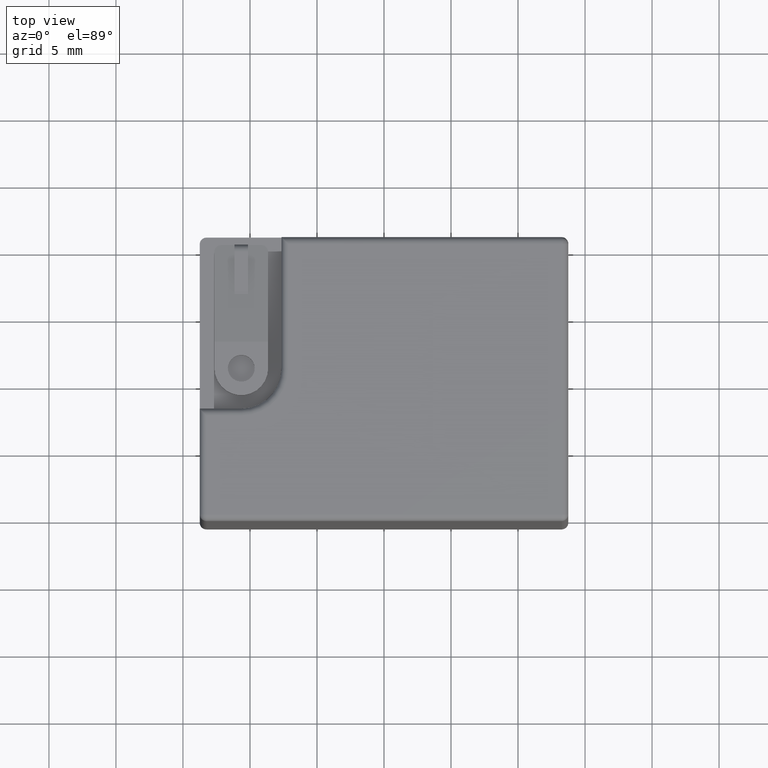
[diagram: clean part render]
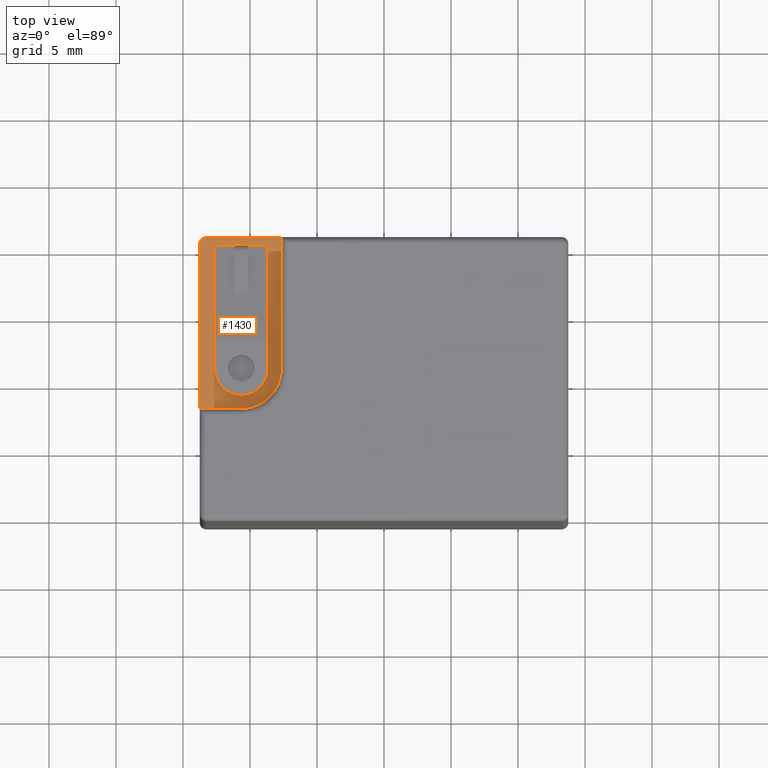
[diagram: same view with one face highlighted and labeled with its STEP entity id]
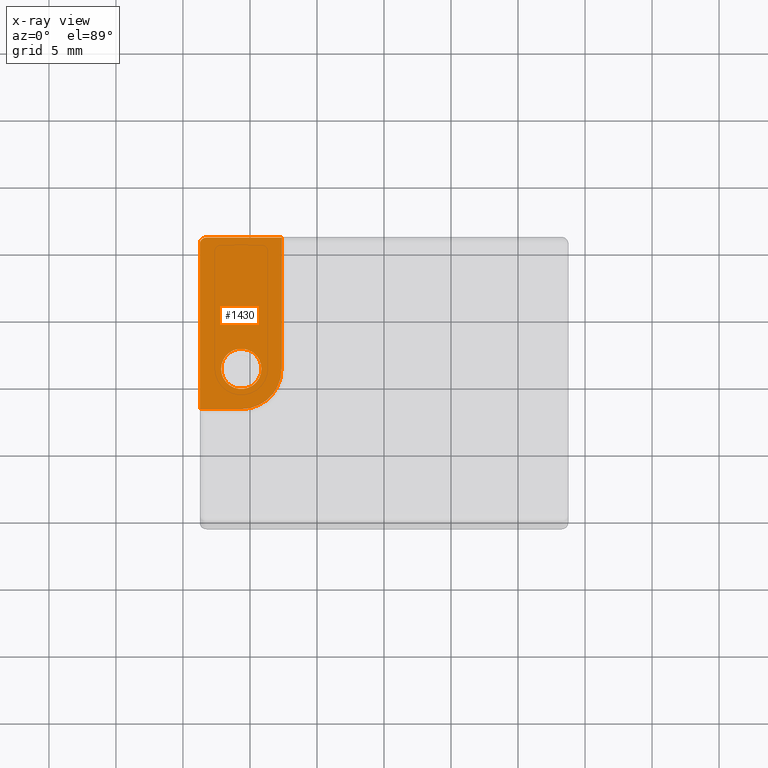
[diagram: x-ray of the same camera — body ghosted, the highlighted face saturated]
A machine part, top view. The second image highlights one B-rep face of the part: STEP entity #1430.
The next image is the same camera in x-ray: the body ghosted, the highlighted face saturated — about 0% of this face is hidden behind the body in this view.
In plain terms, the highlighted planar face has unit normal (0, 0, -1).
Its self-contained STEP definition (entity closure, byte-faithful):
#1361 = VERTEX_POINT ( 'NONE', #4551 ) ;
#1367 = VERTEX_POINT ( 'NONE', #4539 ) ;
#1369 = EDGE_CURVE ( 'NONE', #1367, #1361, #4538, .T. ) ;
#1400 = EDGE_CURVE ( 'NONE', #1416, #1418, #4613, .T. ) ;
#1401 = ORIENTED_EDGE ( 'NONE', *, *, #1402, .T. ) ;
#1402 = EDGE_CURVE ( 'NONE', #1418, #1406, #4608, .T. ) ;
#1403 = EDGE_LOOP ( 'NONE', ( #1419, #1421 ) ) ;
#1404 = ORIENTED_EDGE ( 'NONE', *, *, #1405, .T. ) ;
#1405 = EDGE_CURVE ( 'NONE', #1406, #1407, #4604, .T. ) ;
#1406 = VERTEX_POINT ( 'NONE', #4600 ) ;
#1407 = VERTEX_POINT ( 'NONE', #4599 ) ;
#1408 = ORIENTED_EDGE ( 'NONE', *, *, #1409, .T. ) ;
#1409 = EDGE_CURVE ( 'NONE', #1407, #1410, #4598, .T. ) ;
#1410 = VERTEX_POINT ( 'NONE', #4663 ) ;
#1411 = ORIENTED_EDGE ( 'NONE', *, *, #1412, .T. ) ;
#1412 = EDGE_CURVE ( 'NONE', #1410, #1413, #4662, .T. ) ;
#1413 = VERTEX_POINT ( 'NONE', #4658 ) ;
#1414 = ORIENTED_EDGE ( 'NONE', *, *, #1415, .T. ) ;
#1415 = EDGE_CURVE ( 'NONE', #1413, #1416, #4657, .T. ) ;
#1416 = VERTEX_POINT ( 'NONE', #4653 ) ;
#1417 = ORIENTED_EDGE ( 'NONE', *, *, #1400, .T. ) ;
#1418 = VERTEX_POINT ( 'NONE', #4652 ) ;
#1419 = ORIENTED_EDGE ( 'NONE', *, *, #1420, .F. ) ;
#1420 = EDGE_CURVE ( 'NONE', #1361, #1367, #4650, .T. ) ;
#1421 = ORIENTED_EDGE ( 'NONE', *, *, #1369, .F. ) ;
#1430 = ADVANCED_FACE ( 'NONE', ( #4670, #4669 ), #4668, .F. ) ;
#1431 = EDGE_LOOP ( 'NONE', ( #1404, #1408, #1411, #1414, #1417, #1401 ) ) ;
#4534 = DIRECTION ( 'NONE',  ( -1.000000000000000000, 0.0000000000000000000, 0.0000000000000000000 ) ) ;
#4535 = DIRECTION ( 'NONE',  ( 0.0000000000000000000, 0.0000000000000000000, 1.000000000000000000 ) ) ;
#4536 = CARTESIAN_POINT ( 'NONE',  ( -10.65000000000000200, 0.7999999999999977100, 33.09999999999999400 ) ) ;
#4537 = AXIS2_PLACEMENT_3D ( 'NONE', #4536, #4535, #4534 ) ;
#4538 = CIRCLE ( 'NONE', #4537, 1.499999999999999600 ) ;
#4539 = CARTESIAN_POINT ( 'NONE',  ( -9.150000000000002100, 0.7999999999999979300, 33.09999999999999400 ) ) ;
#4551 = CARTESIAN_POINT ( 'NONE',  ( -12.15000000000000000, 0.7999999999999977100, 33.09999999999999400 ) ) ;
#4594 = DIRECTION ( 'NONE',  ( -1.000000000000000000, 0.0000000000000000000, 0.0000000000000000000 ) ) ;
#4595 = DIRECTION ( 'NONE',  ( 0.0000000000000000000, 0.0000000000000000000, 1.000000000000000000 ) ) ;
#4596 = CARTESIAN_POINT ( 'NONE',  ( -13.25000000000000200, 10.09999999999999800, 33.09999999999999400 ) ) ;
#4597 = AXIS2_PLACEMENT_3D ( 'NONE', #4596, #4595, #4594 ) ;
#4598 = CIRCLE ( 'NONE', #4597, 0.5000000000000004400 ) ;
#4599 = CARTESIAN_POINT ( 'NONE',  ( -13.25000000000000200, 10.59999999999999800, 33.09999999999999400 ) ) ;
#4600 = CARTESIAN_POINT ( 'NONE',  ( -7.650000000000003900, 10.59999999999999800, 33.09999999999999400 ) ) ;
#4601 = DIRECTION ( 'NONE',  ( -1.000000000000000000, 0.0000000000000000000, 0.0000000000000000000 ) ) ;
#4602 = VECTOR ( 'NONE', #4601, 1000.000000000000000 ) ;
#4603 = CARTESIAN_POINT ( 'NONE',  ( -13.75000000000000200, 10.59999999999999800, 33.09999999999999400 ) ) ;
#4604 = LINE ( 'NONE', #4603, #4602 ) ;
#4605 = DIRECTION ( 'NONE',  ( -3.540251991789402400E-016, 1.000000000000000000, 0.0000000000000000000 ) ) ;
#4606 = VECTOR ( 'NONE', #4605, 1000.000000000000000 ) ;
#4607 = CARTESIAN_POINT ( 'NONE',  ( -7.650000000000003900, 10.59999999999999800, 33.09999999999999400 ) ) ;
#4608 = LINE ( 'NONE', #4607, #4606 ) ;
#4609 = DIRECTION ( 'NONE',  ( -1.000000000000000000, 0.0000000000000000000, 0.0000000000000000000 ) ) ;
#4610 = DIRECTION ( 'NONE',  ( 0.0000000000000000000, 0.0000000000000000000, 1.000000000000000000 ) ) ;
#4611 = CARTESIAN_POINT ( 'NONE',  ( -10.65000000000000200, 0.7999999999999977100, 33.09999999999999400 ) ) ;
#4612 = AXIS2_PLACEMENT_3D ( 'NONE', #4611, #4610, #4609 ) ;
#4613 = CIRCLE ( 'NONE', #4612, 3.000000000000000900 ) ;
#4646 = DIRECTION ( 'NONE',  ( -1.000000000000000000, 0.0000000000000000000, 0.0000000000000000000 ) ) ;
#4647 = DIRECTION ( 'NONE',  ( 0.0000000000000000000, 0.0000000000000000000, 1.000000000000000000 ) ) ;
#4648 = CARTESIAN_POINT ( 'NONE',  ( -10.65000000000000200, 0.7999999999999977100, 33.09999999999999400 ) ) ;
#4649 = AXIS2_PLACEMENT_3D ( 'NONE', #4648, #4647, #4646 ) ;
#4650 = CIRCLE ( 'NONE', #4649, 1.499999999999999600 ) ;
#4652 = CARTESIAN_POINT ( 'NONE',  ( -7.650000000000000400, 0.7999999999999980500, 33.09999999999999400 ) ) ;
#4653 = CARTESIAN_POINT ( 'NONE',  ( -10.65000000000000200, -2.200000000000002800, 33.09999999999999400 ) ) ;
#4654 = DIRECTION ( 'NONE',  ( 1.000000000000000000, 1.398970545142586300E-016, 0.0000000000000000000 ) ) ;
#4655 = VECTOR ( 'NONE', #4654, 1000.000000000000000 ) ;
#4656 = CARTESIAN_POINT ( 'NONE',  ( -10.65000000000000200, -2.200000000000002400, 33.09999999999999400 ) ) ;
#4657 = LINE ( 'NONE', #4656, #4655 ) ;
#4658 = CARTESIAN_POINT ( 'NONE',  ( -13.75000000000000200, -2.200000000000002800, 33.09999999999999400 ) ) ;
#4659 = DIRECTION ( 'NONE',  ( 0.0000000000000000000, -1.000000000000000000, 0.0000000000000000000 ) ) ;
#4660 = VECTOR ( 'NONE', #4659, 1000.000000000000000 ) ;
#4661 = CARTESIAN_POINT ( 'NONE',  ( -13.75000000000000200, -2.200000000000002800, 33.09999999999999400 ) ) ;
#4662 = LINE ( 'NONE', #4661, #4660 ) ;
#4663 = CARTESIAN_POINT ( 'NONE',  ( -13.75000000000000200, 10.09999999999999800, 33.09999999999999400 ) ) ;
#4664 = DIRECTION ( 'NONE',  ( -1.000000000000000000, 0.0000000000000000000, 0.0000000000000000000 ) ) ;
#4665 = DIRECTION ( 'NONE',  ( 0.0000000000000000000, 0.0000000000000000000, -1.000000000000000000 ) ) ;
#4666 = CARTESIAN_POINT ( 'NONE',  ( -10.65000000000000200, 0.7999999999999977100, 33.09999999999999400 ) ) ;
#4667 = AXIS2_PLACEMENT_3D ( 'NONE', #4666, #4665, #4664 ) ;
#4668 = PLANE ( 'NONE',  #4667 ) ;
#4669 = FACE_BOUND ( 'NONE', #1403, .T. ) ;
#4670 = FACE_OUTER_BOUND ( 'NONE', #1431, .T. ) ;